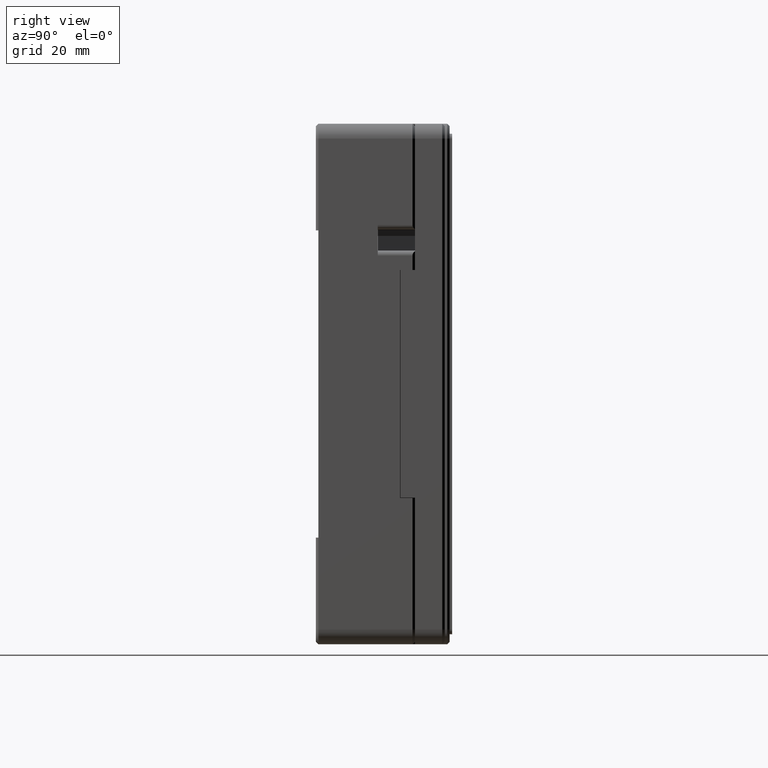
[diagram: clean part render]
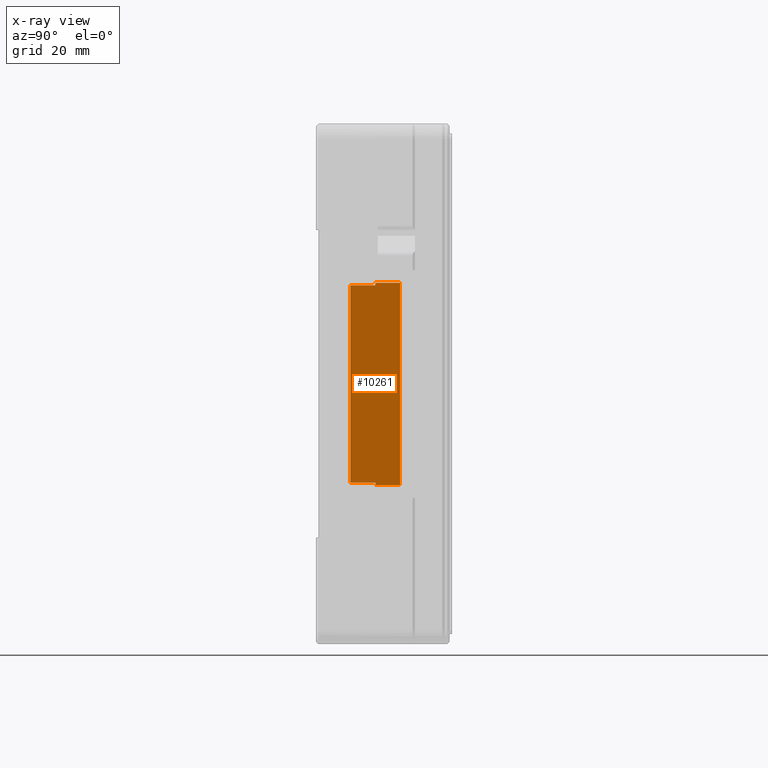
[diagram: x-ray — body ghosted, one internal face saturated and labeled with its STEP entity id]
A machine part, right view, then the same camera in x-ray: the body is ghosted and one INTERNAL B-rep face — a face not visible from any outside direction — is saturated and labeled: STEP entity #10261.
In plain terms, the highlighted planar face has unit normal (1, 0, 0).
Its self-contained STEP definition (entity closure, byte-faithful):
#1178 = CARTESIAN_POINT ( 'NONE',  ( 48.00000000000000000, -3.000000000000000000, 0.0000000000000000000 ) ) ;
#1193 = DIRECTION ( 'NONE',  ( 1.000000000000000000, 0.0000000000000000000, 0.0000000000000000000 ) ) ;
#4190 = DIRECTION ( 'NONE',  ( 0.0000000000000000000, 0.0000000000000000000, -1.000000000000000000 ) ) ;
#4204 = VECTOR ( 'NONE', #4242, 1000.000000000000000 ) ;
#4242 = DIRECTION ( 'NONE',  ( 0.0000000000000000000, 1.000000000000000000, 0.0000000000000000000 ) ) ;
#4433 = VERTEX_POINT ( 'NONE', #10531 ) ;
#4752 = VERTEX_POINT ( 'NONE', #26317 ) ;
#4791 = CARTESIAN_POINT ( 'NONE',  ( 48.00000000000000000, -13.00000000000000000, -19.90000000000000213 ) ) ;
#4813 = DIRECTION ( 'NONE',  ( -0.0000000000000000000, 1.000000000000000000, -0.0000000000000000000 ) ) ;
#4888 = LINE ( 'NONE', #1178, #23710 ) ;
#5051 = LINE ( 'NONE', #34347, #33925 ) ;
#5067 = VECTOR ( 'NONE', #14475, 1000.000000000000000 ) ;
#5360 = EDGE_LOOP ( 'NONE', ( #19931, #6491, #18022, #8781, #13385, #15350, #10255, #23436 ) ) ;
#5371 = DIRECTION ( 'NONE',  ( 0.0000000000000000000, 0.0000000000000000000, 1.000000000000000000 ) ) ;
#6100 = EDGE_CURVE ( 'NONE', #38036, #45295, #16634, .T. ) ;
#6491 = ORIENTED_EDGE ( 'NONE', *, *, #26371, .F. ) ;
#6539 = CARTESIAN_POINT ( 'NONE',  ( 48.00000000000000000, -8.000000000000000000, -19.90000000000000213 ) ) ;
#8470 = VECTOR ( 'NONE', #11652, 1000.000000000000000 ) ;
#8781 = ORIENTED_EDGE ( 'NONE', *, *, #21715, .F. ) ;
#9811 = VECTOR ( 'NONE', #39934, 1000.000000000000000 ) ;
#10255 = ORIENTED_EDGE ( 'NONE', *, *, #22654, .F. ) ;
#10261 = ADVANCED_FACE ( 'NONE', ( #16308 ), #27696, .F. ) ;
#10381 = CARTESIAN_POINT ( 'NONE',  ( 48.00000000000000000, -8.000000000000000000, -20.40000000000000213 ) ) ;
#10531 = CARTESIAN_POINT ( 'NONE',  ( 48.00000000000000000, -8.000000000000000000, 19.90000000000000213 ) ) ;
#11524 = CARTESIAN_POINT ( 'NONE',  ( 48.00000000000000000, -8.000000000000000000, 20.40000000000000213 ) ) ;
#11652 = DIRECTION ( 'NONE',  ( 0.0000000000000000000, 1.000000000000000000, 0.0000000000000000000 ) ) ;
#13369 = CARTESIAN_POINT ( 'NONE',  ( 48.00000000000000000, -13.00000000000000000, 19.90000000000000213 ) ) ;
#13385 = ORIENTED_EDGE ( 'NONE', *, *, #19244, .F. ) ;
#13512 = LINE ( 'NONE', #17710, #40865 ) ;
#14475 = DIRECTION ( 'NONE',  ( 0.0000000000000000000, 0.0000000000000000000, -1.000000000000000000 ) ) ;
#15350 = ORIENTED_EDGE ( 'NONE', *, *, #23914, .T. ) ;
#15369 = LINE ( 'NONE', #19813, #8470 ) ;
#15876 = LINE ( 'NONE', #31011, #4204 ) ;
#16308 = FACE_OUTER_BOUND ( 'NONE', #5360, .T. ) ;
#16634 = LINE ( 'NONE', #28023, #41457 ) ;
#17374 = EDGE_CURVE ( 'NONE', #4752, #32782, #13512, .T. ) ;
#17465 = DIRECTION ( 'NONE',  ( 0.0000000000000000000, -1.000000000000000000, 0.0000000000000000000 ) ) ;
#17710 = CARTESIAN_POINT ( 'NONE',  ( 48.00000000000000000, -8.000000000000000000, 20.40000000000000213 ) ) ;
#18022 = ORIENTED_EDGE ( 'NONE', *, *, #17374, .F. ) ;
#19244 = EDGE_CURVE ( 'NONE', #43903, #36617, #15369, .T. ) ;
#19813 = CARTESIAN_POINT ( 'NONE',  ( 48.00000000000000000, -8.000000000000000000, -20.40000000000000213 ) ) ;
#19931 = ORIENTED_EDGE ( 'NONE', *, *, #32910, .T. ) ;
#21715 = EDGE_CURVE ( 'NONE', #36617, #4752, #4888, .T. ) ;
#22654 = EDGE_CURVE ( 'NONE', #38036, #36998, #15876, .T. ) ;
#23436 = ORIENTED_EDGE ( 'NONE', *, *, #6100, .T. ) ;
#23710 = VECTOR ( 'NONE', #5371, 1000.000000000000000 ) ;
#23914 = EDGE_CURVE ( 'NONE', #43903, #36998, #48352, .T. ) ;
#26317 = CARTESIAN_POINT ( 'NONE',  ( 48.00000000000000000, -3.000000000000000000, 20.40000000000000213 ) ) ;
#26371 = EDGE_CURVE ( 'NONE', #32782, #4433, #30077, .T. ) ;
#27204 = CARTESIAN_POINT ( 'NONE',  ( 48.00000000000000000, -13.19999999999999929, 21.21599999999999753 ) ) ;
#27696 = PLANE ( 'NONE',  #41228 ) ;
#28023 = CARTESIAN_POINT ( 'NONE',  ( 48.00000000000000000, -13.00000000000000000, 0.0000000000000000000 ) ) ;
#30077 = LINE ( 'NONE', #45211, #5067 ) ;
#31011 = CARTESIAN_POINT ( 'NONE',  ( 48.00000000000000000, -8.000000000000000000, -19.90000000000000213 ) ) ;
#32782 = VERTEX_POINT ( 'NONE', #11524 ) ;
#32910 = EDGE_CURVE ( 'NONE', #45295, #4433, #5051, .T. ) ;
#33925 = VECTOR ( 'NONE', #4813, 1000.000000000000000 ) ;
#34347 = CARTESIAN_POINT ( 'NONE',  ( 48.00000000000000000, -10.50000000000000000, 19.90000000000000213 ) ) ;
#36617 = VERTEX_POINT ( 'NONE', #39350 ) ;
#36953 = CARTESIAN_POINT ( 'NONE',  ( 48.00000000000000000, -8.000000000000000000, 0.0000000000000000000 ) ) ;
#36998 = VERTEX_POINT ( 'NONE', #6539 ) ;
#38036 = VERTEX_POINT ( 'NONE', #4791 ) ;
#39350 = CARTESIAN_POINT ( 'NONE',  ( 48.00000000000000000, -3.000000000000000000, -20.40000000000000213 ) ) ;
#39934 = DIRECTION ( 'NONE',  ( -0.0000000000000000000, -0.0000000000000000000, 1.000000000000000000 ) ) ;
#40174 = DIRECTION ( 'NONE',  ( -0.0000000000000000000, -0.0000000000000000000, 1.000000000000000000 ) ) ;
#40865 = VECTOR ( 'NONE', #17465, 1000.000000000000000 ) ;
#41228 = AXIS2_PLACEMENT_3D ( 'NONE', #27204, #1193, #4190 ) ;
#41457 = VECTOR ( 'NONE', #40174, 1000.000000000000000 ) ;
#43903 = VERTEX_POINT ( 'NONE', #10381 ) ;
#45211 = CARTESIAN_POINT ( 'NONE',  ( 48.00000000000000000, -8.000000000000000000, 0.0000000000000000000 ) ) ;
#45295 = VERTEX_POINT ( 'NONE', #13369 ) ;
#48352 = LINE ( 'NONE', #36953, #9811 ) ;